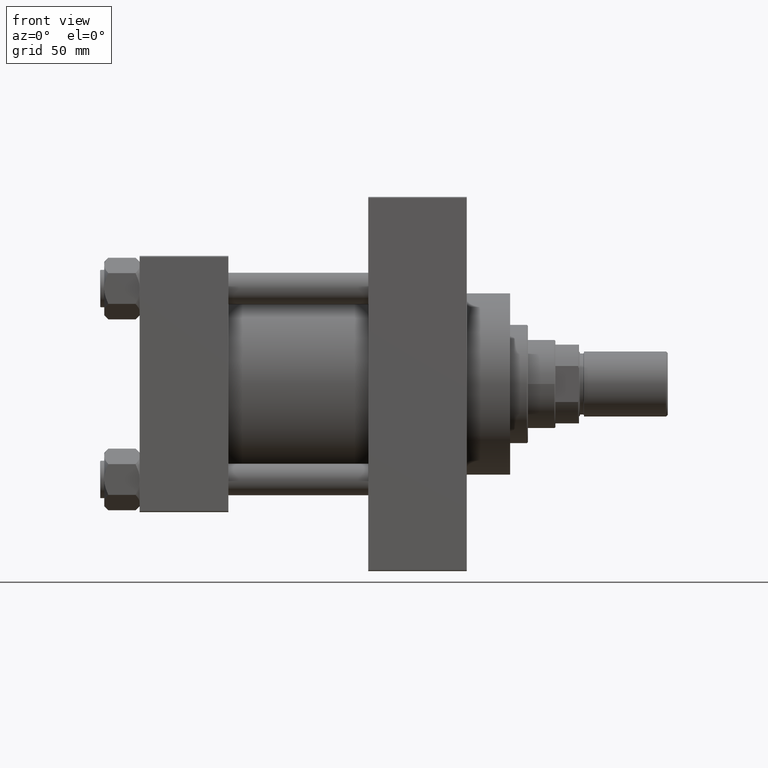
[diagram: clean part render]
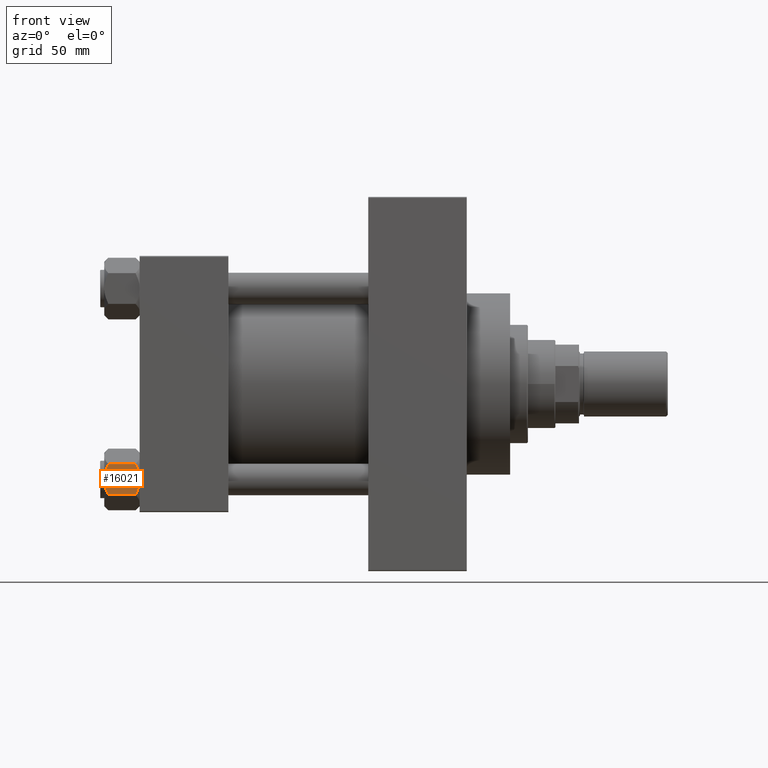
[diagram: same view with one face highlighted and labeled with its STEP entity id]
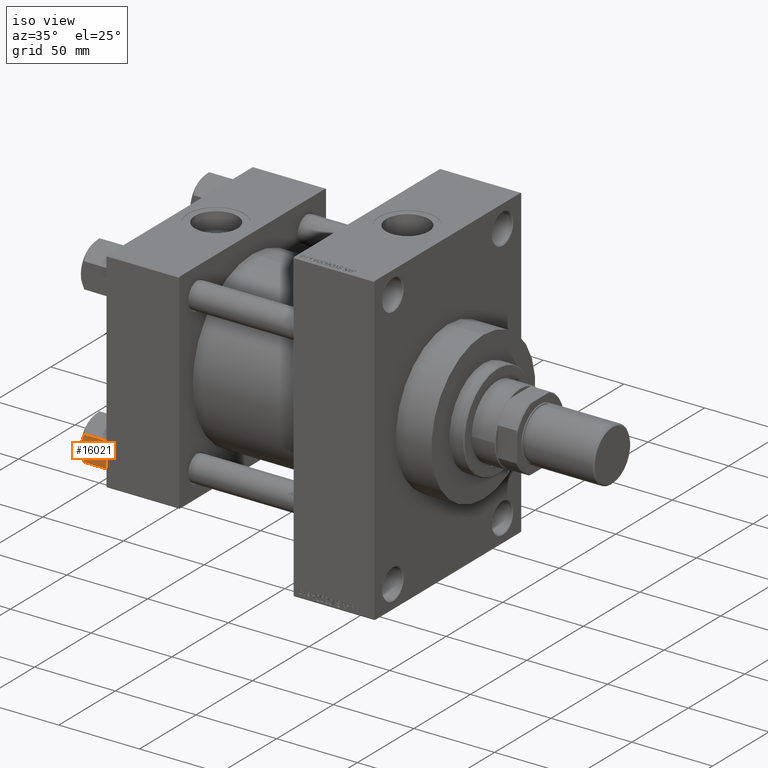
[diagram: same view with one face highlighted and labeled with its STEP entity id]
A machine part, front view. The second image highlights one B-rep face of the part: STEP entity #16021.
A second angle (iso view) of the same face is appended — the face is thin or edge-on in the first view.
In plain terms, the highlighted planar face has unit normal (0, 1, -0).
Its self-contained STEP definition (entity closure, byte-faithful):
#280 = CARTESIAN_POINT ( 'NONE',  ( 7.810000000000001386, 13.52731680711293905, -16.00000000000000000 ) ) ;
#387 = VECTOR ( 'NONE', #40737, 1000.000000000000000 ) ;
#725 = CARTESIAN_POINT ( 'NONE',  ( 1.663410456966173179, 13.52731680711293905, -17.90195050864300441 ) ) ;
#840 = VECTOR ( 'NONE', #39371, 1000.000000000000000 ) ;
#976 = CARTESIAN_POINT ( 'NONE',  ( -7.809999999999997833, 13.52731680711293905, -16.00000000000000000 ) ) ;
#1227 = CARTESIAN_POINT ( 'NONE',  ( 7.030203932307582448, 13.52731680711294082, -16.29099812210859710 ) ) ;
#1617 = CARTESIAN_POINT ( 'NONE',  ( -7.809999999999997833, 13.52731680711293905, -18.00000000000000000 ) ) ;
#2553 = B_SPLINE_CURVE_WITH_KNOTS ( 'NONE', 3,
 ( #32082, #12243, #47564, #20119, #43992, #12744, #24676, #5122 ),
 .UNSPECIFIED., .F., .F.,
 ( 4, 2, 2, 4 ),
 ( 0.01980594295952728401, 0.02179054093496182731, 0.02377513891039636715, 0.02774433486126545029 ),
 .UNSPECIFIED. ) ;
#4171 = CARTESIAN_POINT ( 'NONE',  ( -7.809999999999997833, 13.52731680711293905, -16.00000000000000000 ) ) ;
#4551 = CARTESIAN_POINT ( 'NONE',  ( 0.6693083573771192452, 13.52731680711293905, -17.98750666918892094 ) ) ;
#4714 = CARTESIAN_POINT ( 'NONE',  ( -5.184073258379404692, 13.52731680711294082, -0.9481437906500841395 ) ) ;
#5114 = EDGE_CURVE ( 'NONE', #26705, #11491, #31750, .T. ) ;
#5122 = CARTESIAN_POINT ( 'NONE',  ( 0.000000000000000000, 13.52731680711293905, -18.00000000000000000 ) ) ;
#5466 = FACE_OUTER_BOUND ( 'NONE', #47720, .T. ) ;
#7481 = LINE ( 'NONE', #4171, #49182 ) ;
#7604 = CARTESIAN_POINT ( 'NONE',  ( 7.810000000000001386, 13.52731680711293905, -1.999999999999998224 ) ) ;
#7770 = CARTESIAN_POINT ( 'NONE',  ( -7.030203932307585113, 13.52731680711294082, -1.709001877891394239 ) ) ;
#8415 = VECTOR ( 'NONE', #30285, 1000.000000000000000 ) ;
#8767 = CARTESIAN_POINT ( 'NONE',  ( -2.644243758052991389, 13.52731680711294260, -0.2408281198023992098 ) ) ;
#8943 = CARTESIAN_POINT ( 'NONE',  ( -7.809999999999997833, 13.52731680711293905, -1.999999999999998224 ) ) ;
#9104 = CARTESIAN_POINT ( 'NONE',  ( 7.622943475354646559, 13.52731680711293905, -2.000000000000000000 ) ) ;
#9338 = CARTESIAN_POINT ( 'NONE',  ( 6.422751913021825132, 13.52731680711294260, -16.56349088907410660 ) ) ;
#11458 = ORIENTED_EDGE ( 'NONE', *, *, #37315, .F. ) ;
#11491 = VERTEX_POINT ( 'NONE', #280 ) ;
#11799 = VERTEX_POINT ( 'NONE', #26013 ) ;
#12081 = CARTESIAN_POINT ( 'NONE',  ( 0.000000000000000000, 13.52731680711293905, 0.000000000000000000 ) ) ;
#12243 = CARTESIAN_POINT ( 'NONE',  ( -7.030888348548061551, 13.52731680711293905, -16.29066211644969897 ) ) ;
#12369 = ORIENTED_EDGE ( 'NONE', *, *, #45513, .T. ) ;
#12545 = CARTESIAN_POINT ( 'NONE',  ( 7.030888348548067768, 13.52731680711294260, -1.709337883550299253 ) ) ;
#12744 = CARTESIAN_POINT ( 'NONE',  ( -2.638177715023110714, 13.52731680711294260, -17.79984593233011481 ) ) ;
#13083 = PLANE ( 'NONE',  #27611 ) ;
#13575 = CARTESIAN_POINT ( 'NONE',  ( 0.000000000000000000, 13.52731680711293905, -18.00000000000000000 ) ) ;
#13844 = EDGE_CURVE ( 'NONE', #43342, #48768, #33256, .T. ) ;
#13928 = VERTEX_POINT ( 'NONE', #13575 ) ;
#14415 = ORIENTED_EDGE ( 'NONE', *, *, #5114, .F. ) ;
#15101 = VERTEX_POINT ( 'NONE', #39285 ) ;
#15805 = CARTESIAN_POINT ( 'NONE',  ( -7.809999999999997833, 13.52731680711293905, -16.00000000000000000 ) ) ;
#15845 = CARTESIAN_POINT ( 'NONE',  ( 5.189513245496330640, 13.52731680711293727, -0.9501108431732594450 ) ) ;
#16021 = ADVANCED_FACE ( 'NONE', ( #5466 ), #13083, .F. ) ;
#16096 = CARTESIAN_POINT ( 'NONE',  ( 2.638177715023107162, 13.52731680711293905, -0.2001540676698846388 ) ) ;
#16353 = CARTESIAN_POINT ( 'NONE',  ( 6.427364677720476926, 13.52731680711294082, -1.438506937155140664 ) ) ;
#16901 = DIRECTION ( 'NONE',  ( 0.000000000000000000, -0.000000000000000000, -1.000000000000000000 ) ) ;
#16969 = CARTESIAN_POINT ( 'NONE',  ( 4.557734399832410688, 13.52731680711294260, -17.26585298258849122 ) ) ;
#17095 = EDGE_CURVE ( 'NONE', #27129, #43342, #36964, .T. ) ;
#19273 = LINE ( 'NONE', #45967, #39652 ) ;
#20043 = CARTESIAN_POINT ( 'NONE',  ( 1.333889873825132355, 13.52731680711293727, -17.93843358996560511 ) ) ;
#20119 = CARTESIAN_POINT ( 'NONE',  ( -5.189513245496329752, 13.52731680711293727, -17.04988915682674033 ) ) ;
#20173 = ORIENTED_EDGE ( 'NONE', *, *, #39432, .F. ) ;
#20885 = LINE ( 'NONE', #8943, #44046 ) ;
#21042 = CARTESIAN_POINT ( 'NONE',  ( 3.287826776903149728, 13.52731680711294082, -17.61954155462466431 ) ) ;
#23520 = CARTESIAN_POINT ( 'NONE',  ( -3.287826776903153281, 13.52731680711294082, -0.3804584453753372952 ) ) ;
#23771 = CARTESIAN_POINT ( 'NONE',  ( -7.622943475354646559, 13.52731680711293905, -2.000000000000000000 ) ) ;
#23858 = CARTESIAN_POINT ( 'NONE',  ( 0.3330234424833813378, 13.52731680711293905, -18.00000000000000355 ) ) ;
#24676 = CARTESIAN_POINT ( 'NONE',  ( -1.335584685993417287, 13.52731680711294082, -18.00000000000000000 ) ) ;
#25554 = CARTESIAN_POINT ( 'NONE',  ( -7.622943475354646559, 13.52731680711293905, -2.000000000000000000 ) ) ;
#26013 = CARTESIAN_POINT ( 'NONE',  ( -7.809999999999997833, 13.52731680711293905, -1.999999999999998224 ) ) ;
#26705 = VERTEX_POINT ( 'NONE', #31818 ) ;
#27049 = CARTESIAN_POINT ( 'NONE',  ( 4.553769687922306630, 13.52731680711293905, -0.7327291995145164272 ) ) ;
#27129 = VERTEX_POINT ( 'NONE', #9104 ) ;
#27603 = CARTESIAN_POINT ( 'NONE',  ( -0.6693083573771212436, 13.52731680711293905, -0.01249333081108270314 ) ) ;
#27611 = AXIS2_PLACEMENT_3D ( 'NONE', #44347, #32670, #16901 ) ;
#27684 = CARTESIAN_POINT ( 'NONE',  ( 0.000000000000000000, 13.52731680711293905, -18.00000000000000000 ) ) ;
#28326 = LINE ( 'NONE', #1617, #387 ) ;
#30285 = DIRECTION ( 'NONE',  ( -0.000000000000000000, -0.000000000000000000, 1.000000000000000000 ) ) ;
#31371 = CARTESIAN_POINT ( 'NONE',  ( 1.335584685993417065, 13.52731680711294260, -9.486769009248166263E-17 ) ) ;
#31375 = ORIENTED_EDGE ( 'NONE', *, *, #35765, .F. ) ;
#31750 = LINE ( 'NONE', #976, #840 ) ;
#31818 = CARTESIAN_POINT ( 'NONE',  ( 7.622943475354646559, 13.52731680711293905, -16.00000000000000000 ) ) ;
#31919 = CARTESIAN_POINT ( 'NONE',  ( -4.557734399832415129, 13.52731680711294260, -0.7341470174115148906 ) ) ;
#32036 = EDGE_CURVE ( 'NONE', #13928, #26705, #44343, .T. ) ;
#32082 = CARTESIAN_POINT ( 'NONE',  ( -7.622943475354646559, 13.52731680711293905, -16.00000000000000000 ) ) ;
#32495 = CARTESIAN_POINT ( 'NONE',  ( 7.622943475354646559, 13.52731680711293905, -16.00000000000000000 ) ) ;
#32670 = DIRECTION ( 'NONE',  ( 0.000000000000000000, -1.000000000000000000, 0.000000000000000000 ) ) ;
#32884 = VERTEX_POINT ( 'NONE', #7604 ) ;
#33099 = LINE ( 'NONE', #40959, #8415 ) ;
#33256 = B_SPLINE_CURVE_WITH_KNOTS ( 'NONE', 3,
 ( #12081, #50207, #27603, #39041, #39542, #8767, #23520, #31919, #4714, #47410, #7770, #23771 ),
 .UNSPECIFIED., .F., .F.,
 ( 4, 2, 2, 2, 2, 4 ),
 ( 0.02774433486126545376, 0.02873404020403549225, 0.02972374554680553074, 0.03170315623234560426, 0.03368256691788568125, 0.03566197760342575823 ),
 .UNSPECIFIED. ) ;
#33460 = EDGE_CURVE ( 'NONE', #42348, #15101, #7481, .T. ) ;
#33823 = EDGE_CURVE ( 'NONE', #15101, #13928, #2553, .T. ) ;
#35765 = EDGE_CURVE ( 'NONE', #32884, #27129, #19273, .T. ) ;
#36395 = DIRECTION ( 'NONE',  ( -1.000000000000000000, 0.000000000000000000, 0.000000000000000000 ) ) ;
#36964 = B_SPLINE_CURVE_WITH_KNOTS ( 'NONE', 3,
 ( #47113, #12545, #16353, #15845, #27049, #16096, #31371, #42541 ),
 .UNSPECIFIED., .F., .F.,
 ( 4, 2, 2, 4 ),
 ( 0.01980594295952728401, 0.02179054093496182731, 0.02377513891039636715, 0.02774433486126545376 ),
 .UNSPECIFIED. ) ;
#37051 = ORIENTED_EDGE ( 'NONE', *, *, #33823, .F. ) ;
#37315 = EDGE_CURVE ( 'NONE', #48768, #11799, #20885, .T. ) ;
#38846 = DIRECTION ( 'NONE',  ( -1.000000000000000000, 0.000000000000000000, 0.000000000000000000 ) ) ;
#39002 = DIRECTION ( 'NONE',  ( 1.000000000000000000, 0.000000000000000000, 0.000000000000000000 ) ) ;
#39041 = CARTESIAN_POINT ( 'NONE',  ( -1.333889873825133243, 13.52731680711293727, -0.06156641003439514842 ) ) ;
#39285 = CARTESIAN_POINT ( 'NONE',  ( -7.622943475354646559, 13.52731680711293905, -16.00000000000000000 ) ) ;
#39322 = ORIENTED_EDGE ( 'NONE', *, *, #33460, .F. ) ;
#39371 = DIRECTION ( 'NONE',  ( 1.000000000000000000, 0.000000000000000000, 0.000000000000000000 ) ) ;
#39432 = EDGE_CURVE ( 'NONE', #11491, #32884, #33099, .T. ) ;
#39542 = CARTESIAN_POINT ( 'NONE',  ( -1.663410456966174511, 13.52731680711293905, -0.09804949135699092544 ) ) ;
#39652 = VECTOR ( 'NONE', #38846, 1000.000000000000000 ) ;
#40737 = DIRECTION ( 'NONE',  ( -0.000000000000000000, -0.000000000000000000, 1.000000000000000000 ) ) ;
#40959 = CARTESIAN_POINT ( 'NONE',  ( 7.810000000000001386, 13.52731680711293905, -18.00000000000000000 ) ) ;
#41116 = ORIENTED_EDGE ( 'NONE', *, *, #17095, .F. ) ;
#42348 = VERTEX_POINT ( 'NONE', #15805 ) ;
#42541 = CARTESIAN_POINT ( 'NONE',  ( 0.000000000000000000, 13.52731680711293905, 0.000000000000000000 ) ) ;
#43342 = VERTEX_POINT ( 'NONE', #48648 ) ;
#43669 = CARTESIAN_POINT ( 'NONE',  ( 5.184073258379402027, 13.52731680711294082, -17.05185620934991775 ) ) ;
#43992 = CARTESIAN_POINT ( 'NONE',  ( -4.553769687922306630, 13.52731680711293905, -17.26727080048548046 ) ) ;
#44046 = VECTOR ( 'NONE', #36395, 1000.000000000000000 ) ;
#44343 = B_SPLINE_CURVE_WITH_KNOTS ( 'NONE', 3,
 ( #27684, #23858, #4551, #20043, #725, #47236, #21042, #16969, #43669, #9338, #1227, #32495 ),
 .UNSPECIFIED., .F., .F.,
 ( 4, 2, 2, 2, 2, 4 ),
 ( 0.02774433486126545029, 0.02873404020403548878, 0.02972374554680552727, 0.03170315623234559732, 0.03368256691788567431, 0.03566197760342575129 ),
 .UNSPECIFIED. ) ;
#44347 = CARTESIAN_POINT ( 'NONE',  ( -7.809999999999997833, 13.52731680711293905, -18.00000000000000000 ) ) ;
#45513 = EDGE_CURVE ( 'NONE', #42348, #11799, #28326, .T. ) ;
#45967 = CARTESIAN_POINT ( 'NONE',  ( -7.809999999999997833, 13.52731680711293905, -1.999999999999998224 ) ) ;
#46534 = ORIENTED_EDGE ( 'NONE', *, *, #13844, .F. ) ;
#47113 = CARTESIAN_POINT ( 'NONE',  ( 7.622943475354646559, 13.52731680711293905, -2.000000000000000000 ) ) ;
#47236 = CARTESIAN_POINT ( 'NONE',  ( 2.644243758052989612, 13.52731680711294260, -17.75917188019759863 ) ) ;
#47410 = CARTESIAN_POINT ( 'NONE',  ( -6.422751913021825132, 13.52731680711294260, -1.436509110925897614 ) ) ;
#47564 = CARTESIAN_POINT ( 'NONE',  ( -6.427364677720471597, 13.52731680711293905, -16.56149306284486400 ) ) ;
#47720 = EDGE_LOOP ( 'NONE', ( #39322, #12369, #11458, #46534, #41116, #31375, #20173, #14415, #49867, #37051 ) ) ;
#48648 = CARTESIAN_POINT ( 'NONE',  ( 0.000000000000000000, 13.52731680711293905, 0.000000000000000000 ) ) ;
#48768 = VERTEX_POINT ( 'NONE', #25554 ) ;
#49182 = VECTOR ( 'NONE', #39002, 1000.000000000000000 ) ;
#49867 = ORIENTED_EDGE ( 'NONE', *, *, #32036, .F. ) ;
#50207 = CARTESIAN_POINT ( 'NONE',  ( -0.3330234424833830031, 13.52731680711293905, 5.717472393966525748E-18 ) ) ;